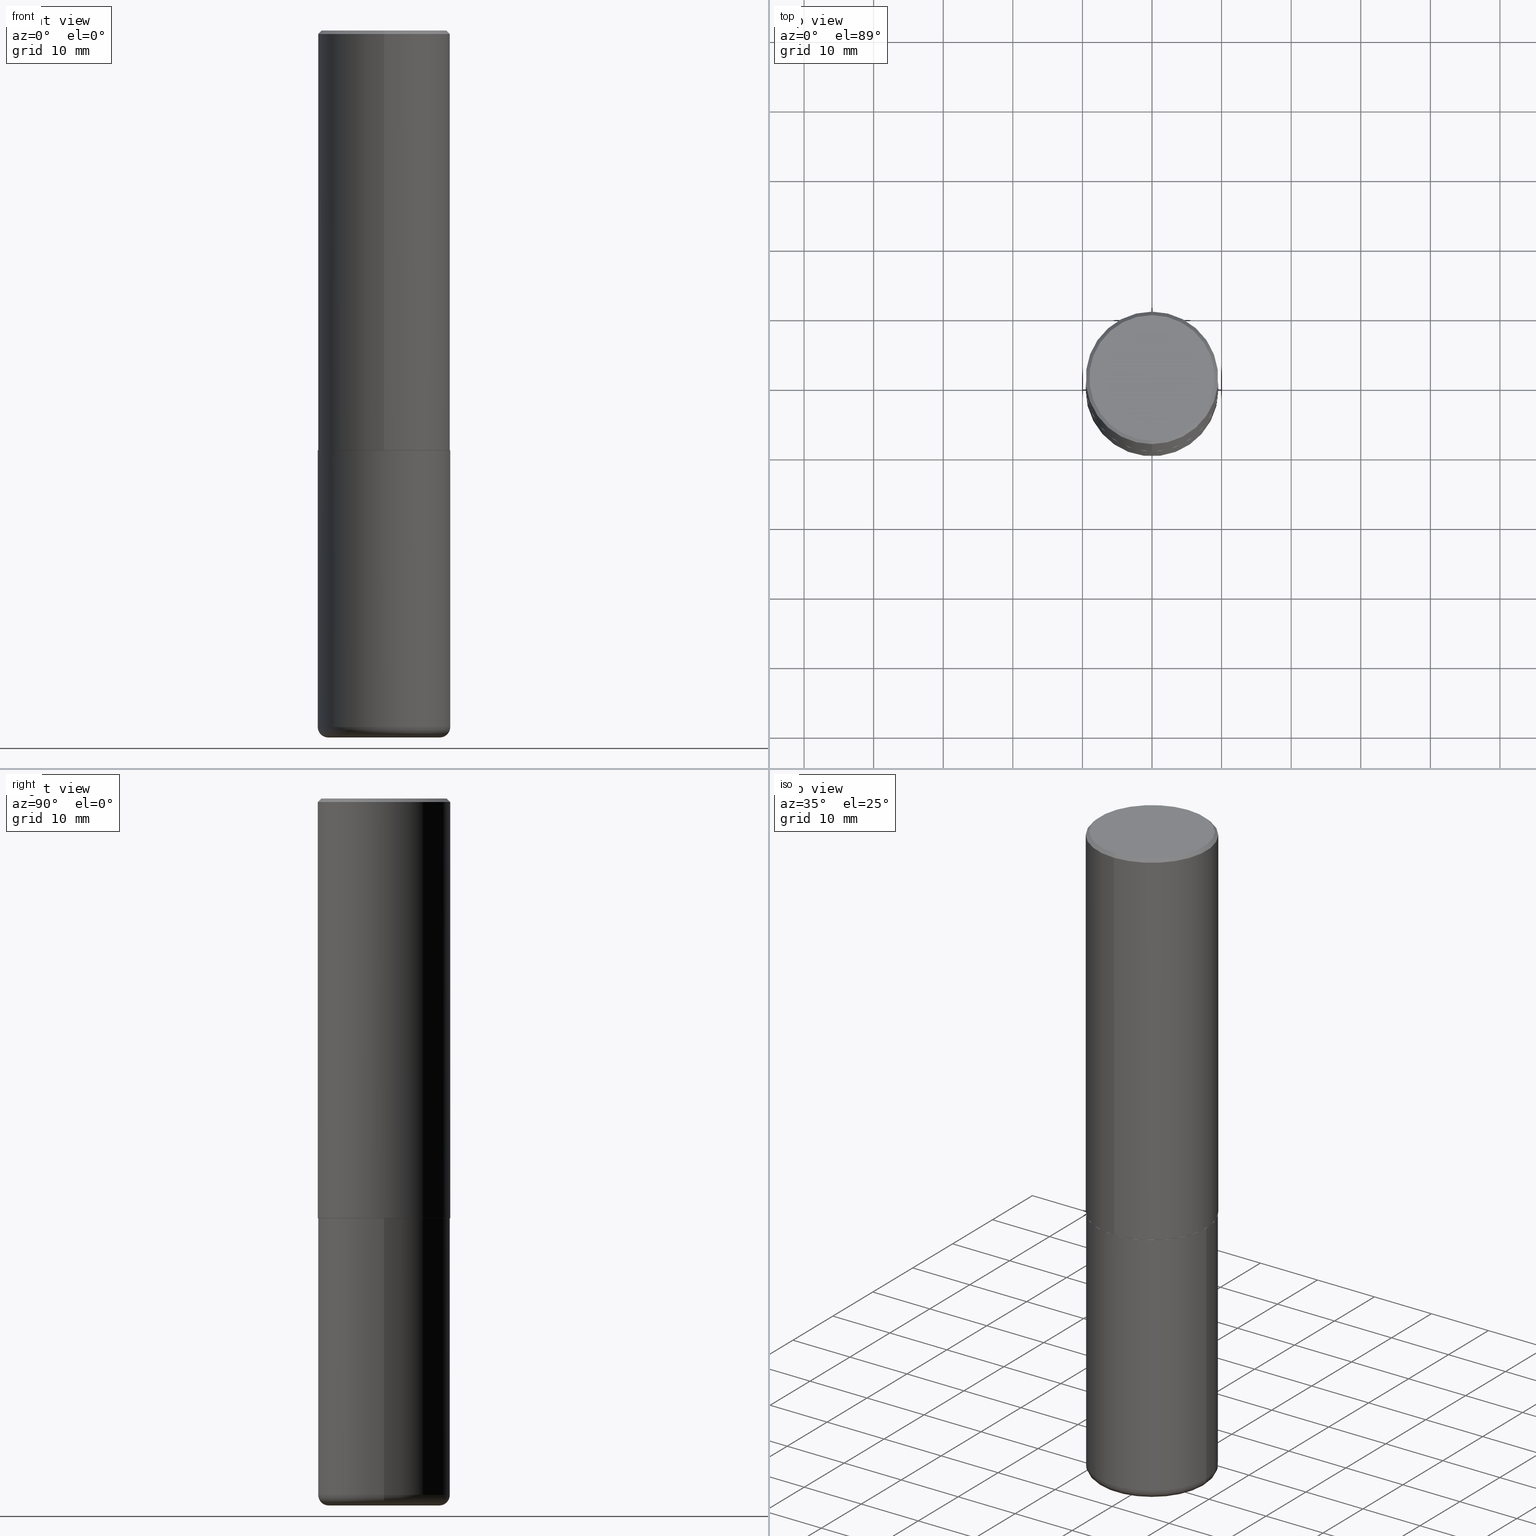
[diagram: canonical four-view strip — front | top / right | iso, engineering-drawing reading convention]
A machine part, canonical four-view strip (front | top / right | iso — engineering-drawing reading convention). The complete STEP part file that produces these views, byte-faithful:
ISO-10303-21;
HEADER;
FILE_DESCRIPTION (( 'STEP AP203' ),
    '1' );
FILE_NAME ('37225.STEP',
    '2024-03-01T22:17:23',
    ( '' ),
    ( '' ),
    'SwSTEP 2.0',
    'SolidWorks 2023',
    '' );
FILE_SCHEMA (( 'CONFIG_CONTROL_DESIGN' ));
ENDSEC;

DATA;
#1 = CC_DESIGN_PERSON_AND_ORGANIZATION_ASSIGNMENT ( #326, #257, ( #14 ) ) ;
#2 = CARTESIAN_POINT ( 'NONE',  ( 5.805863974919259746E-29, -8.295310498419343824E-15, -2.375000000000000000 ) ) ;
#3 = DIRECTION ( 'NONE',  ( -2.445468806185136877E-29, 3.491481338843145188E-15, 1.000000000000000000 ) ) ;
#4 = ORIENTED_EDGE ( 'NONE', *, *, #141, .T. ) ;
#5 = APPROVAL_DATE_TIME ( #70, #405 ) ;
#6 = AXIS2_PLACEMENT_3D ( 'NONE', #2, #412, #156 ) ;
#7 = CARTESIAN_POINT ( 'NONE',  ( 9.635147096369438236E-29, -1.375643647504199401E-14, -3.939999999999999947 ) ) ;
#8 = PRODUCT_DEFINITION_SHAPE ( 'NONE', 'NONE',  #137 ) ;
#9 = CARTESIAN_POINT ( 'NONE',  ( 5.803419400614030161E-29, -8.291817736104219412E-15, -2.373999999999999666 ) ) ;
#10 = ORIENTED_EDGE ( 'NONE', *, *, #262, .F. ) ;
#11 = CALENDAR_DATE ( 2024, 1, 3 ) ;
#12 = CARTESIAN_POINT ( 'NONE',  ( 0.000000000000000000, 0.000000000000000000, 0.000000000000000000 ) ) ;
#13 = DATE_AND_TIME ( #33, #416 ) ;
#14 = SECURITY_CLASSIFICATION ( '', '', #365 ) ;
#15 = DATE_AND_TIME ( #140, #65 ) ;
#16 = EDGE_LOOP ( 'NONE', ( #176, #418 ) ) ;
#17 = AXIS2_PLACEMENT_3D ( 'NONE', #397, #234, #108 ) ;
#18 = DIRECTION ( 'NONE',  ( -6.982962677686266711E-15, -1.000000000000000000, 3.652203200085913145E-15 ) ) ;
#19 = ADVANCED_FACE ( 'NONE', ( #121 ), #311, .T. ) ;
#20 = MANIFOLD_SOLID_BREP ( 'Body-Move/Copy2[1]', #279 ) ;
#21 = ORIENTED_EDGE ( 'NONE', *, *, #402, .T. ) ;
#22 = AXIS2_PLACEMENT_3D ( 'NONE', #84, #278, #179 ) ;
#23 = ORIENTED_EDGE ( 'NONE', *, *, #224, .F. ) ;
#24 = CARTESIAN_POINT ( 'NONE',  ( 5.805863974919259746E-29, -8.295310498419343824E-15, -2.375000000000000000 ) ) ;
#25 = APPLICATION_CONTEXT ( 'configuration controlled 3d designs of mechanical parts and assemblies' ) ;
#26 = ADVANCED_FACE ( 'NONE', ( #154 ), #203, .F. ) ;
#27 = CARTESIAN_POINT ( 'NONE',  ( -2.618611004132351200E-15, -0.3750000000000001665, 1.309785868171475725E-15 ) ) ;
#28 = DIRECTION ( 'NONE',  ( -2.445468806185136877E-29, 3.491481338843145188E-15, 1.000000000000000000 ) ) ;
#29 = DIRECTION ( 'NONE',  ( 1.000000000000000000, -6.982962677686266711E-15, 0.000000000000000000 ) ) ;
#30 = AXIS2_PLACEMENT_3D ( 'NONE', #321, #124, #225 ) ;
#31 = ORIENTED_EDGE ( 'NONE', *, *, #51, .F. ) ;
#32 = DIRECTION ( 'NONE',  ( 1.000000000000000000, -6.982962677686279332E-15, 0.000000000000000000 ) ) ;
#33 = CALENDAR_DATE ( 2024, 1, 3 ) ;
#34 = AXIS2_PLACEMENT_3D ( 'NONE', #68, #384, #188 ) ;
#35 = VECTOR ( 'NONE', #400, 39.37007874015748854 ) ;
#36 = PERSON_AND_ORGANIZATION ( #260, #361 ) ;
#37 = DIRECTION ( 'NONE',  ( 5.024295867787889629E-15, 0.7071067811865257013, 0.7071067811865691111 ) ) ;
#38 = APPROVAL_DATE_TIME ( #144, #55 ) ;
#39 = ORIENTED_EDGE ( 'NONE', *, *, #327, .F. ) ;
#40 = CLOSED_SHELL ( 'NONE', ( #60, #228, #201, #44, #88, #332, #409, #394 ) ) ;
#41 = AXIS2_PLACEMENT_3D ( 'NONE', #174, #117, #343 ) ;
#42 = DIRECTION ( 'NONE',  ( 1.000000000000000000, -6.982962677686267499E-15, 0.000000000000000000 ) ) ;
#43 = MECHANICAL_CONTEXT ( 'NONE', #205, 'mechanical' ) ;
#44 = ADVANCED_FACE ( 'NONE', ( #273 ), #289, .T. ) ;
#45 = EDGE_LOOP ( 'NONE', ( #329, #282 ) ) ;
#46 = ADVANCED_FACE ( 'NONE', ( #410 ), #90, .T. ) ;
#47 = CYLINDRICAL_SURFACE ( 'NONE', #147, 0.3750000000000000555 ) ;
#48 = ORIENTED_EDGE ( 'NONE', *, *, #185, .T. ) ;
#49 = UNCERTAINTY_MEASURE_WITH_UNIT (LENGTH_MEASURE( 1.000000000000000082E-05 ), #392, 'distance_accuracy_value', 'NONE');
#50 = DIRECTION ( 'NONE',  ( -2.445468806185136597E-29, 3.491481338843145583E-15, 1.000000000000000000 ) ) ;
#51 = EDGE_CURVE ( 'NONE', #95, #381, #195, .T. ) ;
#52 = CARTESIAN_POINT ( 'NONE',  ( 5.807988414689699417E-29, -8.292268179752470118E-15, -2.375000000000000000 ) ) ;
#53 = AXIS2_PLACEMENT_3D ( 'NONE', #210, #50, #371 ) ;
#54 = ORIENTED_EDGE ( 'NONE', *, *, #298, .F. ) ;
#55 = APPROVAL ( #259, 'UNSPECIFIED' ) ;
#56 = DIRECTION ( 'NONE',  ( 1.000000000000000000, -6.982962677686265922E-15, 4.876176775795935793E-29 ) ) ;
#57 = ORIENTED_EDGE ( 'NONE', *, *, #317, .T. ) ;
#58 = VECTOR ( 'NONE', #37, 39.37007874015748854 ) ;
#59 = FACE_OUTER_BOUND ( 'NONE', #87, .T. ) ;
#60 = ADVANCED_FACE ( 'NONE', ( #268 ), #414, .T. ) ;
#61 = EDGE_LOOP ( 'NONE', ( #21, #57 ) ) ;
#62 = DIRECTION ( 'NONE',  ( -6.982962677686266711E-15, -1.000000000000000000, 3.652203200085913145E-15 ) ) ;
#63 = EDGE_LOOP ( 'NONE', ( #23, #404, #263, #10 ) ) ;
#64 = DIRECTION ( 'NONE',  ( -6.982962677686266711E-15, -1.000000000000000000, 3.491481338843145583E-15 ) ) ;
#65 = LOCAL_TIME ( 17, 17, 23.00000000000000000, #134 ) ;
#66 = CARTESIAN_POINT ( 'NONE',  ( 0.3750000000000000555, -2.618611004132350016E-15, 1.828566290923476203E-29 ) ) ;
#67 =( NAMED_UNIT ( * ) SI_UNIT ( $, .STERADIAN. ) SOLID_ANGLE_UNIT ( ) );
#68 = CARTESIAN_POINT ( 'NONE',  ( 5.803419400614030161E-29, -8.291817736104219412E-15, -2.373999999999999666 ) ) ;
#69 = LENGTH_MEASURE_WITH_UNIT ( LENGTH_MEASURE( 0.02539999999999999897 ), #364 );
#70 = DATE_AND_TIME ( #368, #374 ) ;
#71 = DIRECTION ( 'NONE',  ( -2.444574305229161733E-29, 3.492762315123933951E-15, 1.000000000000000000 ) ) ;
#72 = AXIS2_PLACEMENT_3D ( 'NONE', #7, #94, #290 ) ;
#73 = SHAPE_DEFINITION_REPRESENTATION ( #8, #363 ) ;
#74 = AXIS2_PLACEMENT_3D ( 'NONE', #265, #128, #403 ) ;
#75 = CARTESIAN_POINT ( 'NONE',  ( 0.000000000000000000, 0.000000000000000000, 0.000000000000000000 ) ) ;
#76 = ORIENTED_EDGE ( 'NONE', *, *, #274, .F. ) ;
#77 = ADVANCED_FACE ( 'NONE', ( #373 ), #244, .T. ) ;
#78 = ORIENTED_EDGE ( 'NONE', *, *, #96, .T. ) ;
#79 = APPROVAL_ROLE ( '' ) ;
#80 = DIRECTION ( 'NONE',  ( -2.445468806185136597E-29, 3.491481338843145583E-15, 1.000000000000000000 ) ) ;
#81 = ORIENTED_EDGE ( 'NONE', *, *, #327, .T. ) ;
#82 = PERSON_AND_ORGANIZATION_ROLE ( 'creator' ) ;
#83 = CIRCLE ( 'NONE', #17, 0.3750000000000000555 ) ;
#84 = CARTESIAN_POINT ( 'NONE',  ( 9.781875224740547508E-29, -1.396592535537258391E-14, -4.000000000000000888 ) ) ;
#85 = ORIENTED_EDGE ( 'NONE', *, *, #224, .T. ) ;
#86 = LOCAL_TIME ( 17, 17, 23.00000000000000000, #417 ) ;
#87 = EDGE_LOOP ( 'NONE', ( #31, #340 ) ) ;
#88 = ADVANCED_FACE ( 'NONE', ( #97 ), #219, .T. ) ;
#89 = CARTESIAN_POINT ( 'NONE',  ( 0.000000000000000000, 0.000000000000000000, 0.000000000000000000 ) ) ;
#90 = PLANE ( 'NONE',  #351 ) ;
#91 = AXIS2_PLACEMENT_3D ( 'NONE', #182, #114, #29 ) ;
#92 = DIRECTION ( 'NONE',  ( 2.444574305229161733E-29, -3.492762315123933951E-15, -1.000000000000000000 ) ) ;
#93 = EDGE_LOOP ( 'NONE', ( #178, #111, #127, #295 ) ) ;
#94 = DIRECTION ( 'NONE',  ( -2.445468806185136597E-29, 3.491481338843145583E-15, 1.000000000000000000 ) ) ;
#95 = VERTEX_POINT ( 'NONE', #187 ) ;
#96 = EDGE_CURVE ( 'NONE', #231, #318, #212, .T. ) ;
#97 = FACE_OUTER_BOUND ( 'NONE', #358, .T. ) ;
#98 = ORIENTED_EDGE ( 'NONE', *, *, #126, .T. ) ;
#99 = VECTOR ( 'NONE', #389, 39.37007874015748854 ) ;
#100 = APPROVAL_PERSON_ORGANIZATION ( #255, #405, #299 ) ;
#101 = CARTESIAN_POINT ( 'NONE',  ( -2.572686749164323547E-15, -0.3750000000000001110, -0.01999999999999879652 ) ) ;
#102 = CARTESIAN_POINT ( 'NONE',  ( 2.618611004132350411E-15, 0.3749999999999999445, -0.02000000000000141595 ) ) ;
#103 = DIRECTION ( 'NONE',  ( -6.982962677686266711E-15, -1.000000000000000000, 3.642463991552348591E-15 ) ) ;
#104 = APPROVAL_STATUS ( 'not_yet_approved' ) ;
#105 = PRODUCT_RELATED_PRODUCT_CATEGORY ( 'detail', '', ( #254 ) ) ;
#106 = AXIS2_PLACEMENT_3D ( 'NONE', #75, #197, #366 ) ;
#107 = ORIENTED_EDGE ( 'NONE', *, *, #308, .F. ) ;
#108 = DIRECTION ( 'NONE',  ( 1.000000000000000000, -6.982962677686266711E-15, 0.000000000000000000 ) ) ;
#109 = ORIENTED_EDGE ( 'NONE', *, *, #51, .T. ) ;
#110 = PERSON_AND_ORGANIZATION ( #260, #361 ) ;
#111 = ORIENTED_EDGE ( 'NONE', *, *, #370, .T. ) ;
#112 = AXIS2_PLACEMENT_3D ( 'NONE', #9, #256, #103 ) ;
#113 = CARTESIAN_POINT ( 'NONE',  ( -0.3750000000000000555, -8.359817068296857158E-15, -2.375000000000000000 ) ) ;
#114 = DIRECTION ( 'NONE',  ( -2.445468806185136597E-29, 3.491481338843145583E-15, 1.000000000000000000 ) ) ;
#115 = DIMENSIONAL_EXPONENTS ( 1.000000000000000000, 0.000000000000000000, 0.000000000000000000, 0.000000000000000000, 0.000000000000000000, 0.000000000000000000, 0.000000000000000000 ) ;
#116 = VERTEX_POINT ( 'NONE', #132 ) ;
#117 = DIRECTION ( 'NONE',  ( -2.444574305229161733E-29, 3.492762315123933951E-15, 1.000000000000000000 ) ) ;
#118 = DIRECTION ( 'NONE',  ( -2.444574305229161733E-29, 3.492762315123933951E-15, 1.000000000000000000 ) ) ;
#119 = AXIS2_PLACEMENT_3D ( 'NONE', #338, #376, #411 ) ;
#120 = CIRCLE ( 'NONE', #169, 0.3750000000000000555 ) ;
#121 = FACE_OUTER_BOUND ( 'NONE', #63, .T. ) ;
#122 = ORIENTED_EDGE ( 'NONE', *, *, #126, .F. ) ;
#123 = FACE_OUTER_BOUND ( 'NONE', #378, .T. ) ;
#124 = DIRECTION ( 'NONE',  ( 7.105427357601001859E-15, 1.000000000000000000, -3.491481338843145583E-15 ) ) ;
#125 = DIRECTION ( 'NONE',  ( 6.982962677686265922E-15, 1.000000000000000000, -3.492762315123933951E-15 ) ) ;
#126 = EDGE_CURVE ( 'NONE', #116, #143, #246, .T. ) ;
#127 = ORIENTED_EDGE ( 'NONE', *, *, #145, .T. ) ;
#128 = DIRECTION ( 'NONE',  ( -2.445468806185136597E-29, 3.491481338843145583E-15, 1.000000000000000000 ) ) ;
#129 = CC_DESIGN_DATE_AND_TIME_ASSIGNMENT ( #13, #302, ( #137 ) ) ;
#130 = VERTEX_POINT ( 'NONE', #160 ) ;
#131 = PERSON_AND_ORGANIZATION ( #260, #361 ) ;
#132 = CARTESIAN_POINT ( 'NONE',  ( -2.504081769186607821E-15, -0.3549999999999997602, 1.509301655325001413E-15 ) ) ;
#133 = AXIS2_PLACEMENT_3D ( 'NONE', #12, #367, #162 ) ;
#134 = COORDINATED_UNIVERSAL_TIME_OFFSET ( 5, 0, .BEHIND. ) ;
#135 = APPROVAL_DATE_TIME ( #356, #167 ) ;
#136 = ORIENTED_EDGE ( 'NONE', *, *, #199, .F. ) ;
#137 = PRODUCT_DEFINITION ( 'UNKNOWN', '', #396, #386 ) ;
#138 = ORIENTED_EDGE ( 'NONE', *, *, #402, .F. ) ;
#139 = CC_DESIGN_APPROVAL ( #167, ( #137 ) ) ;
#140 = CALENDAR_DATE ( 2024, 1, 3 ) ;
#141 = EDGE_CURVE ( 'NONE', #130, #336, #333, .T. ) ;
#142 = APPROVAL_PERSON_ORGANIZATION ( #131, #167, #206 ) ;
#143 = VERTEX_POINT ( 'NONE', #350 ) ;
#144 = DATE_AND_TIME ( #11, #165 ) ;
#145 = EDGE_CURVE ( 'NONE', #322, #231, #151, .T. ) ;
#146 = VECTOR ( 'NONE', #71, 39.37007874015748143 ) ;
#147 = AXIS2_PLACEMENT_3D ( 'NONE', #89, #247, #171 ) ;
#148 = CARTESIAN_POINT ( 'NONE',  ( 0.3150000000000000577, -1.616555859884375729E-14, -4.000000000000000888 ) ) ;
#149 = CARTESIAN_POINT ( 'NONE',  ( -6.584975069595768119E-45, 9.408489944411256093E-31, 2.693710334560058270E-16 ) ) ;
#150 = ORIENTED_EDGE ( 'NONE', *, *, #216, .T. ) ;
#151 = CIRCLE ( 'NONE', #252, 0.06000000000000017819 ) ;
#152 = DIRECTION ( 'NONE',  ( -1.000000000000000000, 6.982962677686265922E-15, -4.876176775795935793E-29 ) ) ;
#153 = CC_DESIGN_PERSON_AND_ORGANIZATION_ASSIGNMENT ( #110, #313, ( #254 ) ) ;
#154 = FACE_OUTER_BOUND ( 'NONE', #16, .T. ) ;
#155 = LINE ( 'NONE', #159, #177 ) ;
#156 = DIRECTION ( 'NONE',  ( -6.982962677686266711E-15, -1.000000000000000000, 3.652203200085913145E-15 ) ) ;
#157 = FACE_OUTER_BOUND ( 'NONE', #218, .T. ) ;
#158 = EDGE_CURVE ( 'NONE', #130, #143, #183, .T. ) ;
#159 = CARTESIAN_POINT ( 'NONE',  ( 2.664535259100376486E-15, 0.3750000000000001665, -1.309785868171475725E-15 ) ) ;
#160 = CARTESIAN_POINT ( 'NONE',  ( -2.618611004132293613E-15, -0.3750000000000085487, -2.373999999999998334 ) ) ;
#161 = CARTESIAN_POINT ( 'NONE',  ( 4.889148610458350090E-31, -6.985524630247905373E-17, -0.02000000000000010797 ) ) ;
#162 = DIRECTION ( 'NONE',  ( 1.000000000000000000, 0.000000000000000000, 0.000000000000000000 ) ) ;
#163 = PERSON_AND_ORGANIZATION_ROLE ( 'creator' ) ;
#164 = DIRECTION ( 'NONE',  ( 1.000000000000000000, -6.982962677686266711E-15, 0.000000000000000000 ) ) ;
#165 = LOCAL_TIME ( 17, 17, 23.00000000000000000, #398 ) ;
#166 = AXIS2_PLACEMENT_3D ( 'NONE', #285, #346, #62 ) ;
#167 = APPROVAL ( #104, 'UNSPECIFIED' ) ;
#168 = VERTEX_POINT ( 'NONE', #102 ) ;
#169 = AXIS2_PLACEMENT_3D ( 'NONE', #283, #267, #314 ) ;
#170 = DATE_TIME_ROLE ( 'classification_date' ) ;
#171 = DIRECTION ( 'NONE',  ( 1.000000000000000000, -6.982962677686265922E-15, 4.876176775795935793E-29 ) ) ;
#172 = EDGE_LOOP ( 'NONE', ( #222, #48, #391, #372 ) ) ;
#173 = CONICAL_SURFACE ( 'NONE', #6, 0.3739999999999999991, 0.7853981633974141952 ) ;
#174 = CARTESIAN_POINT ( 'NONE',  ( -6.584975069595768119E-45, 9.408489944411256093E-31, 2.693710334560058270E-16 ) ) ;
#175 = DIRECTION ( 'NONE',  ( -1.000000000000000000, 6.982962677686265922E-15, -4.876176775795935793E-29 ) ) ;
#176 = ORIENTED_EDGE ( 'NONE', *, *, #294, .T. ) ;
#177 = VECTOR ( 'NONE', #377, 39.37007874015748143 ) ;
#178 = ORIENTED_EDGE ( 'NONE', *, *, #185, .F. ) ;
#179 = DIRECTION ( 'NONE',  ( 1.000000000000000000, -6.982962677686267499E-15, 0.000000000000000000 ) ) ;
#180 = DIRECTION ( 'NONE',  ( -2.444574305229161733E-29, 3.492762315123933951E-15, 1.000000000000000000 ) ) ;
#181 = DIRECTION ( 'NONE',  ( 4.937700262164533054E-15, 0.7071067811865430208, -0.7071067811865517916 ) ) ;
#182 = CARTESIAN_POINT ( 'NONE',  ( 5.807988414689699417E-29, -8.292268179752470118E-15, -2.375000000000000000 ) ) ;
#183 = LINE ( 'NONE', #27, #146 ) ;
#184 = CC_DESIGN_APPROVAL ( #405, ( #396 ) ) ;
#185 = EDGE_CURVE ( 'NONE', #241, #318, #305, .T. ) ;
#186 = EDGE_LOOP ( 'NONE', ( #354, #150, #198, #76 ) ) ;
#187 = CARTESIAN_POINT ( 'NONE',  ( -2.611628041454605626E-15, -0.3740000000000082703, -2.374999999999998668 ) ) ;
#188 = DIRECTION ( 'NONE',  ( -6.982962677686266711E-15, -1.000000000000000000, 3.642463991552348591E-15 ) ) ;
#189 = PERSON_AND_ORGANIZATION_ROLE ( 'design_supplier' ) ;
#190 = CARTESIAN_POINT ( 'NONE',  ( 9.635147096369438236E-29, -1.375643647504199401E-14, -3.939999999999999947 ) ) ;
#191 = AXIS2_PLACEMENT_3D ( 'NONE', #52, #275, #152 ) ;
#192 = PERSON_AND_ORGANIZATION ( #260, #361 ) ;
#193 = EDGE_CURVE ( 'NONE', #231, #385, #353, .T. ) ;
#194 = CC_DESIGN_PERSON_AND_ORGANIZATION_ASSIGNMENT ( #331, #82, ( #137 ) ) ;
#195 = CIRCLE ( 'NONE', #204, 0.3739999999999999991 ) ;
#196 = CIRCLE ( 'NONE', #320, 0.3549999999999997602 ) ;
#197 = DIRECTION ( 'NONE',  ( -2.444574305229161733E-29, 3.492762315123933951E-15, 1.000000000000000000 ) ) ;
#198 = ORIENTED_EDGE ( 'NONE', *, *, #250, .T. ) ;
#199 = EDGE_CURVE ( 'NONE', #143, #168, #388, .T. ) ;
#200 = FACE_OUTER_BOUND ( 'NONE', #186, .T. ) ;
#201 = ADVANCED_FACE ( 'NONE', ( #281 ), #245, .T. ) ;
#202 = PLANE ( 'NONE',  #232 ) ;
#203 = PLANE ( 'NONE',  #191 ) ;
#204 = AXIS2_PLACEMENT_3D ( 'NONE', #307, #180, #18 ) ;
#205 = APPLICATION_CONTEXT ( 'configuration controlled 3d designs of mechanical parts and assemblies' ) ;
#206 = APPROVAL_ROLE ( '' ) ;
#207 = EDGE_LOOP ( 'NONE', ( #109, #362, #408, #309 ) ) ;
#208 = CC_DESIGN_DATE_AND_TIME_ASSIGNMENT ( #15, #170, ( #14 ) ) ;
#209 = ORIENTED_EDGE ( 'NONE', *, *, #199, .T. ) ;
#210 = CARTESIAN_POINT ( 'NONE',  ( 9.635147096369438236E-29, -1.375643647504199401E-14, -3.939999999999999947 ) ) ;
#211 = CC_DESIGN_SECURITY_CLASSIFICATION ( #14, ( #396 ) ) ;
#212 = CIRCLE ( 'NONE', #264, 0.3750000000000000555 ) ;
#213 = TOROIDAL_SURFACE ( 'NONE', #53, 0.3150000000000000577, 0.06000000000000021289 ) ;
#214 = CARTESIAN_POINT ( 'NONE',  ( 4.937077108964125641E-29, -2.090395200594849049E-14, -4.000000000000000000 ) ) ;
#215 = CARTESIAN_POINT ( 'NONE',  ( 2.664535259100406068E-15, 0.3749999999999920619, -2.374000000000001442 ) ) ;
#216 = EDGE_CURVE ( 'NONE', #381, #95, #280, .T. ) ;
#217 = DIRECTION ( 'NONE',  ( 6.982962677686265922E-15, 1.000000000000000000, -3.494488891895536035E-15 ) ) ;
#218 = EDGE_LOOP ( 'NONE', ( #4, #341, #136, #382 ) ) ;
#219 = CYLINDRICAL_SURFACE ( 'NONE', #271, 0.3750000000000001665 ) ;
#220 = AXIS2_PLACEMENT_3D ( 'NONE', #407, #118, #238 ) ;
#221 = DIRECTION ( 'NONE',  ( -2.444574305229161733E-29, 3.492762315123933951E-15, 1.000000000000000000 ) ) ;
#222 = ORIENTED_EDGE ( 'NONE', *, *, #269, .T. ) ;
#223 =( NAMED_UNIT ( * ) PLANE_ANGLE_UNIT ( ) SI_UNIT ( $, .RADIAN. ) );
#224 = EDGE_CURVE ( 'NONE', #318, #270, #316, .T. ) ;
#225 = DIRECTION ( 'NONE',  ( -1.000000000000000000, 7.105427357601001859E-15, 0.000000000000000000 ) ) ;
#226 = LINE ( 'NONE', #360, #58 ) ;
#227 = VECTOR ( 'NONE', #28, 39.37007874015748143 ) ;
#228 = ADVANCED_FACE ( 'NONE', ( #157 ), #395, .T. ) ;
#229 = PERSON_AND_ORGANIZATION ( #260, #361 ) ;
#230 = CARTESIAN_POINT ( 'NONE',  ( 9.781875224740547508E-29, -1.396592535537258391E-14, -4.000000000000000888 ) ) ;
#231 = VERTEX_POINT ( 'NONE', #303 ) ;
#232 = AXIS2_PLACEMENT_3D ( 'NONE', #337, #379, #125 ) ;
#233 = CC_DESIGN_APPROVAL ( #55, ( #14 ) ) ;
#234 = DIRECTION ( 'NONE',  ( -2.445468806185136597E-29, 3.491481338843145583E-15, 1.000000000000000000 ) ) ;
#235 = CARTESIAN_POINT ( 'NONE',  ( 2.618611004132350411E-15, 0.3749999999999999445, -0.02000000000000141595 ) ) ;
#236 = ORIENTED_EDGE ( 'NONE', *, *, #317, .F. ) ;
#237 = DIRECTION ( 'NONE',  ( -6.982962677686266711E-15, -1.000000000000000000, 3.492762315123933556E-15 ) ) ;
#238 = DIRECTION ( 'NONE',  ( -6.982962677686266711E-15, -1.000000000000000000, 3.652203200085913145E-15 ) ) ;
#239 = CIRCLE ( 'NONE', #74, 0.3750000000000000555 ) ;
#240 = CARTESIAN_POINT ( 'NONE',  ( 0.000000000000000000, 0.000000000000000000, 0.000000000000000000 ) ) ;
#241 = VERTEX_POINT ( 'NONE', #261 ) ;
#242 = ORIENTED_EDGE ( 'NONE', *, *, #158, .T. ) ;
#243 = FACE_OUTER_BOUND ( 'NONE', #93, .T. ) ;
#244 = TOROIDAL_SURFACE ( 'NONE', #72, 0.3150000000000000577, 0.06000000000000021289 ) ;
#245 = CONICAL_SURFACE ( 'NONE', #352, 0.3750000000000000555, 0.7853981633974456145 ) ;
#246 = LINE ( 'NONE', #101, #99 ) ;
#247 = DIRECTION ( 'NONE',  ( -2.445468806185136597E-29, 3.491481338843145583E-15, 1.000000000000000000 ) ) ;
#248 = ORIENTED_EDGE ( 'NONE', *, *, #193, .F. ) ;
#249 = CARTESIAN_POINT ( 'NONE',  ( 2.660982545421634357E-15, 0.3739999999999917835, -2.375000000000001776 ) ) ;
#250 = EDGE_CURVE ( 'NONE', #95, #130, #369, .T. ) ;
#251 = DIRECTION ( 'NONE',  ( -6.982962677686266711E-15, -1.000000000000000000, 3.492762315123933556E-15 ) ) ;
#252 = AXIS2_PLACEMENT_3D ( 'NONE', #325, #64, #32 ) ;
#253 = APPROVAL_PERSON_ORGANIZATION ( #36, #55, #79 ) ;
#254 = PRODUCT ( '37225', '37225', '', ( #43 ) ) ;
#255 = PERSON_AND_ORGANIZATION ( #260, #361 ) ;
#256 = DIRECTION ( 'NONE',  ( -2.444574305229161733E-29, 3.492762315123933951E-15, 1.000000000000000000 ) ) ;
#257 = PERSON_AND_ORGANIZATION_ROLE ( 'classification_officer' ) ;
#258 = AXIS2_PLACEMENT_3D ( 'NONE', #230, #80, #42 ) ;
#259 = APPROVAL_STATUS ( 'not_yet_approved' ) ;
#260 = PERSON ( 'UNSPECIFIED', 'UNSPECIFIED', 'UNSPECIFIED', ('UNSPECIFIED'), ('UNSPECIFIED'), ('UNSPECIFIED') ) ;
#261 = CARTESIAN_POINT ( 'NONE',  ( -0.3150000000000000577, -1.140980847683494193E-14, -4.000000000000000888 ) ) ;
#262 = EDGE_CURVE ( 'NONE', #270, #385, #83, .T. ) ;
#263 = ORIENTED_EDGE ( 'NONE', *, *, #193, .T. ) ;
#264 = AXIS2_PLACEMENT_3D ( 'NONE', #190, #288, #164 ) ;
#265 = CARTESIAN_POINT ( 'NONE',  ( 9.635147096369438236E-29, -1.375643647504199401E-14, -3.939999999999999947 ) ) ;
#266 = ORIENTED_EDGE ( 'NONE', *, *, #308, .T. ) ;
#267 = DIRECTION ( 'NONE',  ( -2.444574305229161733E-29, 3.492762315123933951E-15, 1.000000000000000000 ) ) ;
#268 = FACE_OUTER_BOUND ( 'NONE', #207, .T. ) ;
#269 = EDGE_CURVE ( 'NONE', #322, #241, #301, .T. ) ;
#270 = VERTEX_POINT ( 'NONE', #113 ) ;
#271 = AXIS2_PLACEMENT_3D ( 'NONE', #355, #221, #251 ) ;
#272 =( GEOMETRIC_REPRESENTATION_CONTEXT ( 3 ) GLOBAL_UNCERTAINTY_ASSIGNED_CONTEXT ( ( #49 ) ) GLOBAL_UNIT_ASSIGNED_CONTEXT ( ( #392, #223, #67 ) ) REPRESENTATION_CONTEXT ( 'NONE', 'WORKASPACE' ) );
#273 = FACE_OUTER_BOUND ( 'NONE', #304, .T. ) ;
#274 = EDGE_CURVE ( 'NONE', #336, #130, #401, .T. ) ;
#275 = DIRECTION ( 'NONE',  ( 2.438088387897960049E-29, -3.491481338843145188E-15, -1.000000000000000000 ) ) ;
#276 = DIRECTION ( 'NONE',  ( -2.444574305229161733E-29, 3.492762315123933951E-15, 1.000000000000000000 ) ) ;
#277 = DIRECTION ( 'NONE',  ( -2.444574305229161733E-29, 3.492762315123933951E-15, 1.000000000000000000 ) ) ;
#278 = DIRECTION ( 'NONE',  ( -2.445468806185136597E-29, 3.491481338843145583E-15, 1.000000000000000000 ) ) ;
#279 = CLOSED_SHELL ( 'NONE', ( #349, #77, #26, #19, #359, #46 ) ) ;
#280 = CIRCLE ( 'NONE', #166, 0.3739999999999999991 ) ;
#281 = FACE_OUTER_BOUND ( 'NONE', #399, .T. ) ;
#282 = ORIENTED_EDGE ( 'NONE', *, *, #370, .F. ) ;
#283 = CARTESIAN_POINT ( 'NONE',  ( 4.889148610458350090E-31, -6.985524630247905373E-17, -0.02000000000000010797 ) ) ;
#284 = EDGE_CURVE ( 'NONE', #381, #336, #226, .T. ) ;
#285 = CARTESIAN_POINT ( 'NONE',  ( 5.805863974919259746E-29, -8.295310498419343824E-15, -2.375000000000000000 ) ) ;
#286 = VERTEX_POINT ( 'NONE', #335 ) ;
#287 = MANIFOLD_SOLID_BREP ( 'Body-Move/Copy2[2]', #40 ) ;
#288 = DIRECTION ( 'NONE',  ( -2.445468806185136597E-29, 3.491481338843145583E-15, 1.000000000000000000 ) ) ;
#289 = CONICAL_SURFACE ( 'NONE', #119, 0.3750000000000000555, 0.7853981633974456145 ) ;
#290 = DIRECTION ( 'NONE',  ( 1.000000000000000000, -6.982962677686263555E-15, 4.883557194083111219E-29 ) ) ;
#291 = CIRCLE ( 'NONE', #41, 0.3549999999999997602 ) ;
#292 = DIRECTION ( 'NONE',  ( -6.982962677686265922E-15, -1.000000000000000000, 3.492762315123933951E-15 ) ) ;
#293 = CARTESIAN_POINT ( 'NONE',  ( -2.611628041454605626E-15, -0.3740000000000082703, -2.374999999999998668 ) ) ;
#294 = EDGE_CURVE ( 'NONE', #385, #270, #306, .T. ) ;
#295 = ORIENTED_EDGE ( 'NONE', *, *, #357, .F. ) ;
#296 = DIRECTION ( 'NONE',  ( -2.444574305229161733E-29, 3.492762315123933951E-15, 1.000000000000000000 ) ) ;
#297 = COORDINATED_UNIVERSAL_TIME_OFFSET ( 5, 0, .BEHIND. ) ;
#298 = EDGE_CURVE ( 'NONE', #336, #168, #155, .T. ) ;
#299 = APPROVAL_ROLE ( '' ) ;
#300 = AXIS2_PLACEMENT_3D ( 'NONE', #240, #375, #56 ) ;
#301 = CIRCLE ( 'NONE', #258, 0.3150000000000000577 ) ;
#302 = DATE_TIME_ROLE ( 'creation_date' ) ;
#303 = CARTESIAN_POINT ( 'NONE',  ( 0.3750000000000001110, -1.637504747917434403E-14, -3.939999999999999947 ) ) ;
#304 = EDGE_LOOP ( 'NONE', ( #122, #138, #266, #81 ) ) ;
#305 = CIRCLE ( 'NONE', #30, 0.06000000000000017819 ) ;
#306 = CIRCLE ( 'NONE', #91, 0.3750000000000000555 ) ;
#307 = CARTESIAN_POINT ( 'NONE',  ( 5.805863974919259746E-29, -8.295310498419343824E-15, -2.375000000000000000 ) ) ;
#308 = EDGE_CURVE ( 'NONE', #286, #168, #383, .T. ) ;
#309 = ORIENTED_EDGE ( 'NONE', *, *, #250, .F. ) ;
#310 = VECTOR ( 'NONE', #181, 39.37007874015748854 ) ;
#311 = CYLINDRICAL_SURFACE ( 'NONE', #300, 0.3750000000000000555 ) ;
#312 = PLANE ( 'NONE',  #344 ) ;
#313 = PERSON_AND_ORGANIZATION_ROLE ( 'design_owner' ) ;
#314 = DIRECTION ( 'NONE',  ( -6.982962677686265922E-15, -1.000000000000000000, 3.494488891895536035E-15 ) ) ;
#315 = CALENDAR_DATE ( 2024, 1, 3 ) ;
#316 = LINE ( 'NONE', #323, #227 ) ;
#317 = EDGE_CURVE ( 'NONE', #116, #286, #196, .T. ) ;
#318 = VERTEX_POINT ( 'NONE', #348 ) ;
#319 = AXIS2_PLACEMENT_3D ( 'NONE', #161, #277, #413 ) ;
#320 = AXIS2_PLACEMENT_3D ( 'NONE', #149, #276, #237 ) ;
#321 = CARTESIAN_POINT ( 'NONE',  ( -0.3150000000000000577, -1.151822685739767881E-14, -3.939999999999999947 ) ) ;
#322 = VERTEX_POINT ( 'NONE', #148 ) ;
#323 = CARTESIAN_POINT ( 'NONE',  ( -0.3750000000000000555, 2.664535259100376091E-15, -1.844600658845589598E-29 ) ) ;
#324 = APPROVAL_STATUS ( 'not_yet_approved' ) ;
#325 = CARTESIAN_POINT ( 'NONE',  ( 0.3150000000000000577, -1.595606971851316740E-14, -3.939999999999999947 ) ) ;
#326 = PERSON_AND_ORGANIZATION ( #260, #361 ) ;
#327 = EDGE_CURVE ( 'NONE', #168, #143, #120, .T. ) ;
#328 = VECTOR ( 'NONE', #3, 39.37007874015748143 ) ;
#329 = ORIENTED_EDGE ( 'NONE', *, *, #269, .F. ) ;
#330 = APPLICATION_PROTOCOL_DEFINITION ( 'international standard', 'config_control_design', 1994, #205 ) ;
#331 = PERSON_AND_ORGANIZATION ( #260, #361 ) ;
#332 = ADVANCED_FACE ( 'NONE', ( #200 ), #173, .T. ) ;
#333 = CIRCLE ( 'NONE', #34, 0.3750000000000002776 ) ;
#334 = CC_DESIGN_PERSON_AND_ORGANIZATION_ASSIGNMENT ( #192, #163, ( #396 ) ) ;
#335 = CARTESIAN_POINT ( 'NONE',  ( 2.548781377355486718E-15, 0.3549999999999997602, -9.705595884129897592E-16 ) ) ;
#336 = VERTEX_POINT ( 'NONE', #215 ) ;
#337 = CARTESIAN_POINT ( 'NONE',  ( 2.478951750578623026E-15, 0.3549999999999997602, -1.105245105140992969E-15 ) ) ;
#338 = CARTESIAN_POINT ( 'NONE',  ( 4.889148610458350090E-31, -6.985524630247905373E-17, -0.02000000000000010797 ) ) ;
#339 = CIRCLE ( 'NONE', #22, 0.3150000000000000577 ) ;
#340 = ORIENTED_EDGE ( 'NONE', *, *, #216, .F. ) ;
#341 = ORIENTED_EDGE ( 'NONE', *, *, #298, .T. ) ;
#342 = CC_DESIGN_PERSON_AND_ORGANIZATION_ASSIGNMENT ( #229, #189, ( #396 ) ) ;
#343 = DIRECTION ( 'NONE',  ( -6.982962677686266711E-15, -1.000000000000000000, 3.492762315123933556E-15 ) ) ;
#344 = AXIS2_PLACEMENT_3D ( 'NONE', #24, #296, #292 ) ;
#345 = DIRECTION ( 'NONE',  ( 2.438088387897960049E-29, -3.491481338843145188E-15, -1.000000000000000000 ) ) ;
#346 = DIRECTION ( 'NONE',  ( -2.444574305229161733E-29, 3.492762315123933951E-15, 1.000000000000000000 ) ) ;
#347 = ORIENTED_EDGE ( 'NONE', *, *, #294, .F. ) ;
#348 = CARTESIAN_POINT ( 'NONE',  ( -0.3750000000000001110, -1.109190121594161832E-14, -3.939999999999999947 ) ) ;
#349 = ADVANCED_FACE ( 'NONE', ( #123 ), #47, .T. ) ;
#350 = CARTESIAN_POINT ( 'NONE',  ( -2.572686749164323547E-15, -0.3750000000000001110, -0.01999999999999879652 ) ) ;
#351 = AXIS2_PLACEMENT_3D ( 'NONE', #214, #345, #175 ) ;
#352 = AXIS2_PLACEMENT_3D ( 'NONE', #380, #92, #217 ) ;
#353 = LINE ( 'NONE', #66, #328 ) ;
#354 = ORIENTED_EDGE ( 'NONE', *, *, #284, .F. ) ;
#355 = CARTESIAN_POINT ( 'NONE',  ( 0.000000000000000000, 0.000000000000000000, 0.000000000000000000 ) ) ;
#356 = DATE_AND_TIME ( #315, #86 ) ;
#357 = EDGE_CURVE ( 'NONE', #318, #231, #239, .T. ) ;
#358 = EDGE_LOOP ( 'NONE', ( #54, #390, #242, #39 ) ) ;
#359 = ADVANCED_FACE ( 'NONE', ( #243 ), #213, .T. ) ;
#360 = CARTESIAN_POINT ( 'NONE',  ( 2.657429831742832670E-15, 0.3739999999999917835, -2.375000000000001776 ) ) ;
#361 = ORGANIZATION ( 'UNSPECIFIED', 'UNSPECIFIED', '' ) ;
#362 = ORIENTED_EDGE ( 'NONE', *, *, #284, .T. ) ;
#363 = ADVANCED_BREP_SHAPE_REPRESENTATION ( '37225', ( #20, #287, #133 ), #272 ) ;
#364 =( LENGTH_UNIT ( ) NAMED_UNIT ( * ) SI_UNIT ( $, .METRE. ) );
#365 = SECURITY_CLASSIFICATION_LEVEL ( 'unclassified' ) ;
#366 = DIRECTION ( 'NONE',  ( -6.982962677686266711E-15, -1.000000000000000000, 3.492762315123933556E-15 ) ) ;
#367 = DIRECTION ( 'NONE',  ( 0.000000000000000000, 0.000000000000000000, 1.000000000000000000 ) ) ;
#368 = CALENDAR_DATE ( 2024, 1, 3 ) ;
#369 = LINE ( 'NONE', #293, #35 ) ;
#370 = EDGE_CURVE ( 'NONE', #241, #322, #339, .T. ) ;
#371 = DIRECTION ( 'NONE',  ( 1.000000000000000000, -6.982962677686263555E-15, 4.883557194083111219E-29 ) ) ;
#372 = ORIENTED_EDGE ( 'NONE', *, *, #145, .F. ) ;
#373 = FACE_OUTER_BOUND ( 'NONE', #172, .T. ) ;
#374 = LOCAL_TIME ( 17, 17, 23.00000000000000000, #297 ) ;
#375 = DIRECTION ( 'NONE',  ( -2.445468806185136597E-29, 3.491481338843145583E-15, 1.000000000000000000 ) ) ;
#376 = DIRECTION ( 'NONE',  ( 2.444574305229161733E-29, -3.492762315123933951E-15, -1.000000000000000000 ) ) ;
#377 = DIRECTION ( 'NONE',  ( -2.444574305229161733E-29, 3.492762315123933951E-15, 1.000000000000000000 ) ) ;
#378 = EDGE_LOOP ( 'NONE', ( #78, #85, #347, #248 ) ) ;
#379 = DIRECTION ( 'NONE',  ( 2.444574305229161733E-29, -3.492762315123933951E-15, -1.000000000000000000 ) ) ;
#380 = CARTESIAN_POINT ( 'NONE',  ( 4.889148610458350090E-31, -6.985524630247905373E-17, -0.02000000000000010797 ) ) ;
#381 = VERTEX_POINT ( 'NONE', #249 ) ;
#382 = ORIENTED_EDGE ( 'NONE', *, *, #158, .F. ) ;
#383 = LINE ( 'NONE', #235, #310 ) ;
#384 = DIRECTION ( 'NONE',  ( -2.444574305229161733E-29, 3.492762315123933951E-15, 1.000000000000000000 ) ) ;
#385 = VERTEX_POINT ( 'NONE', #406 ) ;
#386 = DESIGN_CONTEXT ( 'detailed design', #25, 'design' ) ;
#387 = APPLICATION_PROTOCOL_DEFINITION ( 'international standard', 'config_control_design', 1994, #25 ) ;
#388 = CIRCLE ( 'NONE', #319, 0.3750000000000000555 ) ;
#389 = DIRECTION ( 'NONE',  ( -4.851104656540950075E-15, -0.7071067811865479058, -0.7071067811865469066 ) ) ;
#390 = ORIENTED_EDGE ( 'NONE', *, *, #274, .T. ) ;
#391 = ORIENTED_EDGE ( 'NONE', *, *, #96, .F. ) ;
#392 =( CONVERSION_BASED_UNIT ( 'INCH', #69 ) LENGTH_UNIT ( ) NAMED_UNIT ( #115 ) );
#393 = COORDINATED_UNIVERSAL_TIME_OFFSET ( 5, 0, .BEHIND. ) ;
#394 = ADVANCED_FACE ( 'NONE', ( #415 ), #202, .F. ) ;
#395 = CYLINDRICAL_SURFACE ( 'NONE', #106, 0.3750000000000001665 ) ;
#396 = PRODUCT_DEFINITION_FORMATION_WITH_SPECIFIED_SOURCE ( 'ANY', '', #254, .NOT_KNOWN. ) ;
#397 = CARTESIAN_POINT ( 'NONE',  ( 5.807988414689699417E-29, -8.292268179752470118E-15, -2.375000000000000000 ) ) ;
#398 = COORDINATED_UNIVERSAL_TIME_OFFSET ( 5, 0, .BEHIND. ) ;
#399 = EDGE_LOOP ( 'NONE', ( #236, #98, #209, #107 ) ) ;
#400 = DIRECTION ( 'NONE',  ( -4.937700262164378437E-15, -0.7071067811865208164, 0.7071067811865739960 ) ) ;
#401 = CIRCLE ( 'NONE', #112, 0.3750000000000002776 ) ;
#402 = EDGE_CURVE ( 'NONE', #286, #116, #291, .T. ) ;
#403 = DIRECTION ( 'NONE',  ( 1.000000000000000000, -6.982962677686266711E-15, 0.000000000000000000 ) ) ;
#404 = ORIENTED_EDGE ( 'NONE', *, *, #357, .T. ) ;
#405 = APPROVAL ( #324, 'UNSPECIFIED' ) ;
#406 = CARTESIAN_POINT ( 'NONE',  ( 0.3750000000000000555, -1.091087918388482013E-14, -2.375000000000000000 ) ) ;
#407 = CARTESIAN_POINT ( 'NONE',  ( 5.805863974919259746E-29, -8.295310498419343824E-15, -2.375000000000000000 ) ) ;
#408 = ORIENTED_EDGE ( 'NONE', *, *, #141, .F. ) ;
#409 = ADVANCED_FACE ( 'NONE', ( #59 ), #312, .F. ) ;
#410 = FACE_OUTER_BOUND ( 'NONE', #45, .T. ) ;
#411 = DIRECTION ( 'NONE',  ( 6.982962677686265922E-15, 1.000000000000000000, -3.494488891895536035E-15 ) ) ;
#412 = DIRECTION ( 'NONE',  ( -2.444574305229161733E-29, 3.492762315123933951E-15, 1.000000000000000000 ) ) ;
#413 = DIRECTION ( 'NONE',  ( -6.982962677686265922E-15, -1.000000000000000000, 3.494488891895536035E-15 ) ) ;
#414 = CONICAL_SURFACE ( 'NONE', #220, 0.3739999999999999991, 0.7853981633974141952 ) ;
#415 = FACE_OUTER_BOUND ( 'NONE', #61, .T. ) ;
#416 = LOCAL_TIME ( 17, 17, 23.00000000000000000, #393 ) ;
#417 = COORDINATED_UNIVERSAL_TIME_OFFSET ( 5, 0, .BEHIND. ) ;
#418 = ORIENTED_EDGE ( 'NONE', *, *, #262, .T. ) ;
ENDSEC;
END-ISO-10303-21;
